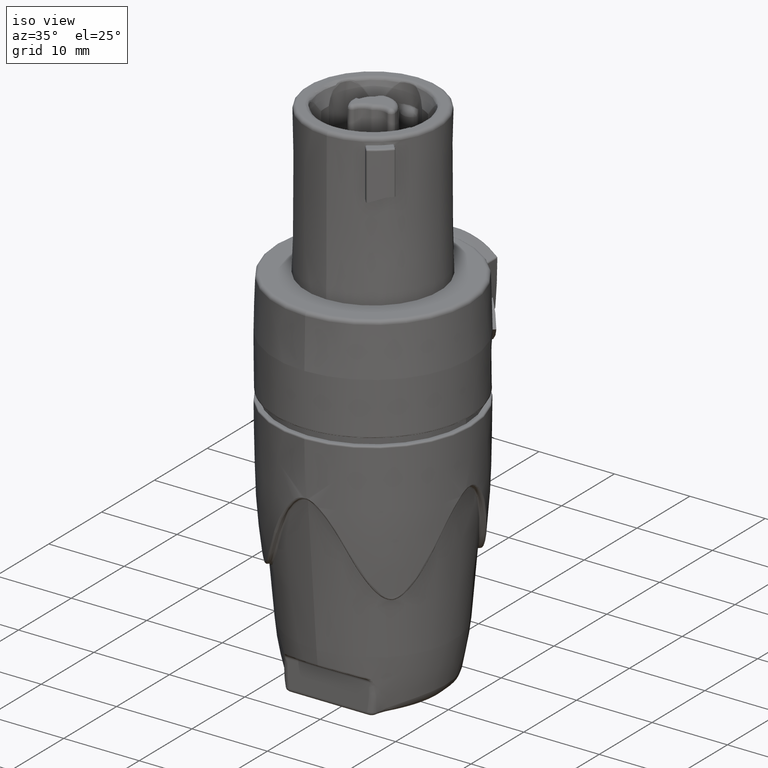
[diagram: clean part render]
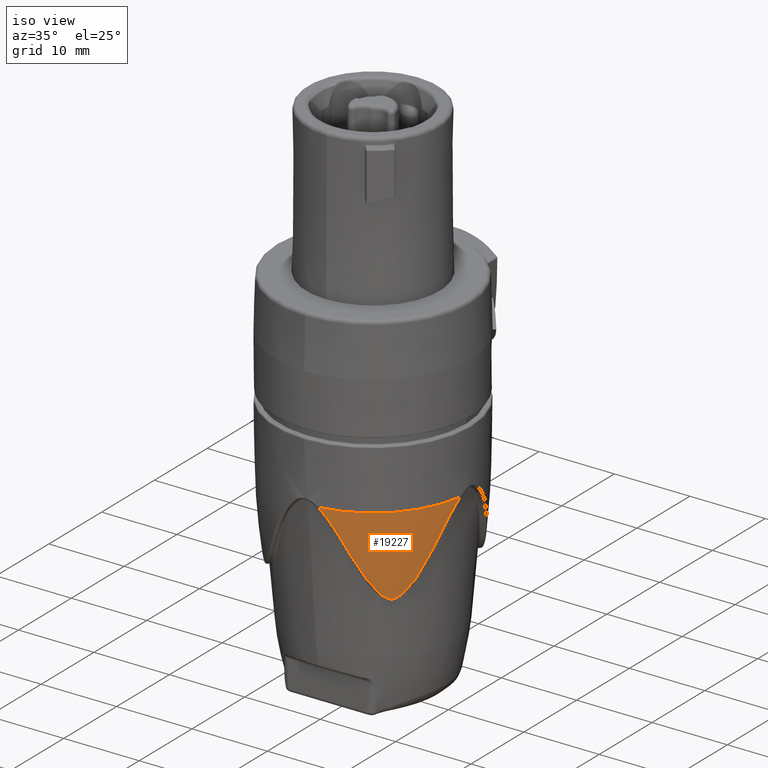
[diagram: same view with one face highlighted and labeled with its STEP entity id]
A machine part, iso view. The second image highlights one B-rep face of the part: STEP entity #19227.
In plain terms, the highlighted face is a freeform B-spline surface patch.
Its self-contained STEP definition (entity closure, byte-faithful):
#4081=CARTESIAN_POINT('',(1.275182245354E1,-1.667444729946E0,
-1.300000035537E1));
#4082=CARTESIAN_POINT('',(1.274464542078E1,-1.716713113895E0,
-1.304179391653E1));
#4083=CARTESIAN_POINT('',(1.273012707650E1,-1.811263618315E0,
-1.312505296189E1));
#4084=CARTESIAN_POINT('',(1.270918016913E1,-1.937447732278E0,
-1.324305575276E1));
#4085=CARTESIAN_POINT('',(1.268675204112E1,-2.062939299385E0,
-1.336749772431E1));
#4086=CARTESIAN_POINT('',(1.266454979160E1,-2.178812974237E0,
-1.348896922077E1));
#4087=CARTESIAN_POINT('',(1.264347896168E1,-2.282521863877E0,
-1.360270674056E1));
#4088=CARTESIAN_POINT('',(1.262297630284E1,-2.378403559832E0,
-1.371184958939E1));
#4089=CARTESIAN_POINT('',(1.260270651531E1,-2.468967197353E0,
-1.381809892347E1));
#4090=CARTESIAN_POINT('',(1.258045827443E1,-2.564236867821E0,
-1.393285219271E1));
#4091=CARTESIAN_POINT('',(1.255403115535E1,-2.672046373720E0,
-1.406651013077E1));
#4092=CARTESIAN_POINT('',(1.252730382788E1,-2.775744889935E0,
-1.419892531850E1));
#4093=CARTESIAN_POINT('',(1.250178448205E1,-2.870531669073E0,
-1.432318360453E1));
#4094=CARTESIAN_POINT('',(1.247658209718E1,-2.960487323011E0,
-1.444417577209E1));
#4095=CARTESIAN_POINT('',(1.245117008014E1,-3.047800810136E0,
-1.456487265246E1));
#4096=CARTESIAN_POINT('',(1.242424521227E1,-3.136920632618E0,
-1.469157788753E1));
#4097=CARTESIAN_POINT('',(1.239421937570E1,-3.232553887109E0,
-1.483155238933E1));
#4098=CARTESIAN_POINT('',(1.235958697480E1,-3.338296156494E0,
-1.499111019123E1));
#4099=CARTESIAN_POINT('',(1.232171398079E1,-3.448950950135E0,
-1.516294177816E1));
#4100=CARTESIAN_POINT('',(1.227947460665E1,-3.567028330815E0,
-1.535097678926E1));
#4101=CARTESIAN_POINT('',(1.223195197963E1,-3.693828894806E0,
-1.555796669691E1));
#4102=CARTESIAN_POINT('',(1.217920438519E1,-3.827861339917E0,
-1.578247582466E1));
#4103=CARTESIAN_POINT('',(1.212123604585E1,-3.967910582396E0,
-1.602371331881E1));
#4104=CARTESIAN_POINT('',(1.205641909571E1,-4.116421755879E0,
-1.628828735303E1));
#4105=CARTESIAN_POINT('',(1.198228334124E1,-4.276724854158E0,
-1.658582140152E1));
#4106=CARTESIAN_POINT('',(1.189812503856E1,-4.447828566195E0,
-1.691744636088E1));
#4107=CARTESIAN_POINT('',(1.180125758997E1,-4.632507584596E0,
-1.728970725536E1));
#4108=CARTESIAN_POINT('',(1.169195893852E1,-4.827367373340E0,
-1.769772223417E1));
#4109=CARTESIAN_POINT('',(1.160863835824E1,-4.965801912925E0,
-1.799930323755E1));
#4110=CARTESIAN_POINT('',(1.156431025204E1,-5.036618906537E0,
-1.815707264818E1));
#4112=CARTESIAN_POINT('',(1.156431025204E1,-5.036618906537E0,
-1.815707264818E1));
#4113=CARTESIAN_POINT('',(1.154126981337E1,-5.073427636941E0,
-1.823907606088E1));
#4114=CARTESIAN_POINT('',(1.149622061149E1,-5.144241035319E0,
-1.839670804310E1));
#4115=CARTESIAN_POINT('',(1.143189314456E1,-5.242461198070E0,
-1.861498748533E1));
#4116=CARTESIAN_POINT('',(1.137205058255E1,-5.331571628309E0,
-1.881267828006E1));
#4117=CARTESIAN_POINT('',(1.130605131064E1,-5.427495053965E0,
-1.902502104081E1));
#4118=CARTESIAN_POINT('',(1.123477241470E1,-5.528356322261E0,
-1.924755687423E1));
#4119=CARTESIAN_POINT('',(1.116209135812E1,-5.628528574257E0,
-1.946751472470E1));
#4120=CARTESIAN_POINT('',(1.109156223852E1,-5.723385896243E0,
-1.967419909969E1));
#4121=CARTESIAN_POINT('',(1.102292330823E1,-5.813879980793E0,
-1.986947751811E1));
#4122=CARTESIAN_POINT('',(1.093868239411E1,-5.922518583381E0,
-2.010080765017E1));
#4123=CARTESIAN_POINT('',(1.085255185025E1,-6.030903635924E0,
-2.032811718131E1));
#4124=CARTESIAN_POINT('',(1.076177260496E1,-6.142384194091E0,
-2.055928976290E1));
#4125=CARTESIAN_POINT('',(1.066882952535E1,-6.253585912731E0,
-2.078781992158E1));
#4126=CARTESIAN_POINT('',(1.057803811802E1,-6.359484395918E0,
-2.100352493591E1));
#4127=CARTESIAN_POINT('',(1.049747459716E1,-6.451403639330E0,
-2.118887591582E1));
#4128=CARTESIAN_POINT('',(1.042389297810E1,-6.533905711417E0,
-2.135312652193E1));
#4129=CARTESIAN_POINT('',(1.035595071014E1,-6.608982820351E0,
-2.150006497169E1));
#4130=CARTESIAN_POINT('',(1.029530179487E1,-6.675214092088E0,
-2.162729758855E1));
#4131=CARTESIAN_POINT('',(1.023826227131E1,-6.736888684119E0,
-2.174362949173E1));
#4132=CARTESIAN_POINT('',(1.018132935526E1,-6.797870469439E0,
-2.185660671125E1));
#4133=CARTESIAN_POINT('',(1.012072382017E1,-6.862139277285E0,
-2.197360766651E1));
#4134=CARTESIAN_POINT('',(1.005336095607E1,-6.932779111685E0,
-2.210016135510E1));
#4135=CARTESIAN_POINT('',(9.973648723886E0,-7.015242899144E0,
-2.224511535242E1));
#4136=CARTESIAN_POINT('',(9.894877190653E0,-7.095557108380E0,
-2.238312913934E1));
#4137=CARTESIAN_POINT('',(9.824257319828E0,-7.166713051305E0,
-2.250265123746E1));
#4138=CARTESIAN_POINT('',(9.754074157353E0,-7.236751374886E0,
-2.261741292661E1));
#4139=CARTESIAN_POINT('',(9.679651010326E0,-7.310399671408E0,
-2.273422934790E1));
#4140=CARTESIAN_POINT('',(9.597122962018E0,-7.391436570005E0,
-2.285767045965E1));
#4141=CARTESIAN_POINT('',(9.501478467088E0,-7.484662365315E0,
-2.299245799630E1));
#4142=CARTESIAN_POINT('',(9.387816530726E0,-7.594530572517E0,
-2.314119656490E1));
#4143=CARTESIAN_POINT('',(9.255477317401E0,-7.721237174732E0,
-2.329917018142E1));
#4144=CARTESIAN_POINT('',(9.107052367432E0,-7.862335811534E0,
-2.345480124867E1));
#4145=CARTESIAN_POINT('',(8.95796052E0,-8.003940924624E0,-2.358455665865E1));
#4146=CARTESIAN_POINT('',(8.819337335003E0,-8.136003262219E0,
-2.368013497117E1));
#4147=CARTESIAN_POINT('',(8.692398371516E0,-8.257908422410E0,
-2.374414926192E1));
#4148=CARTESIAN_POINT('',(8.576091808466E0,-8.371191309866E0,
-2.377937701951E1));
#4149=CARTESIAN_POINT('',(8.506912832867E0,-8.439765732276E0,
-2.378601855167E1));
#4150=CARTESIAN_POINT('',(8.473986525097E0,-8.472685035044E0,
-2.378607443715E1));
#4152=CARTESIAN_POINT('',(8.473986525097E0,-8.472685035044E0,
-2.378607443715E1));
#4153=CARTESIAN_POINT('',(8.443122668060E0,-8.503591018267E0,
-2.378589071338E1));
#4154=CARTESIAN_POINT('',(8.378135560353E0,-8.569163460723E0,
-2.377982299610E1));
#4155=CARTESIAN_POINT('',(8.272410492633E0,-8.677495091615E0,
-2.374927265109E1));
#4156=CARTESIAN_POINT('',(8.158816108985E0,-8.795460159874E0,
-2.369371858540E1));
#4157=CARTESIAN_POINT('',(8.038564254549E0,-8.921501752034E0,
-2.361171109097E1));
#4158=CARTESIAN_POINT('',(7.912312598689E0,-9.054405905445E0,
-2.350294334213E1));
#4159=CARTESIAN_POINT('',(7.781175640487E0,-9.192565093668E0,
-2.336748462656E1));
#4160=CARTESIAN_POINT('',(7.642109493517E0,-9.338402367071E0,
-2.320278754944E1));
#4161=CARTESIAN_POINT('',(7.492178952348E0,-9.493916026747E0,
-2.300485659413E1));
#4162=CARTESIAN_POINT('',(7.346433231158E0,-9.643137555848E0,
-2.279198989494E1));
#4163=CARTESIAN_POINT('',(7.224539269556E0,-9.766491937272E0,
-2.259861607789E1));
#4164=CARTESIAN_POINT('',(7.120360126325E0,-9.870485890241E0,
-2.242527240420E1));
#4165=CARTESIAN_POINT('',(7.028658857554E0,-9.960645469040E0,
-2.226800067511E1));
#4166=CARTESIAN_POINT('',(6.947998162155E0,-1.003879411911E1,
-2.212662108141E1));
#4167=CARTESIAN_POINT('',(6.877421997212E0,-1.010627399139E1,
-2.200072004013E1));
#4168=CARTESIAN_POINT('',(6.814712952575E0,-1.016554391305E1,
-2.188712335579E1));
#4169=CARTESIAN_POINT('',(6.756227938648E0,-1.022027240785E1,
-2.177952763366E1));
#4170=CARTESIAN_POINT('',(6.698416809440E0,-1.027388673588E1,
-2.167134383875E1));
#4171=CARTESIAN_POINT('',(6.638317331490E0,-1.032912244048E1,
-2.155686248034E1));
#4172=CARTESIAN_POINT('',(6.573130506589E0,-1.038844905658E1,
-2.143043051603E1));
#4173=CARTESIAN_POINT('',(6.500565063016E0,-1.045371281596E1,
-2.128718661803E1));
#4174=CARTESIAN_POINT('',(6.423280280174E0,-1.052222958366E1,
-2.113234985769E1));
#4175=CARTESIAN_POINT('',(6.340569080268E0,-1.059434329851E1,
-2.096491920412E1));
#4176=CARTESIAN_POINT('',(6.250061841887E0,-1.067174266737E1,
-2.078023589045E1));
#4177=CARTESIAN_POINT('',(6.152649823386E0,-1.075326154013E1,
-2.058005524580E1));
#4178=CARTESIAN_POINT('',(6.048272032005E0,-1.083857961928E1,
-2.036394658618E1));
#4179=CARTESIAN_POINT('',(5.937477209088E0,-1.092697622375E1,
-2.013227019914E1));
#4180=CARTESIAN_POINT('',(5.814769868150E0,-1.102241484740E1,
-1.987170775429E1));
#4181=CARTESIAN_POINT('',(5.683638604221E0,-1.112159398406E1,
-1.958822903386E1));
#4182=CARTESIAN_POINT('',(5.541045189572E0,-1.122604239126E1,
-1.927563944949E1));
#4183=CARTESIAN_POINT('',(5.386212605353E0,-1.133519305583E1,
-1.893372856901E1));
#4184=CARTESIAN_POINT('',(5.219012430882E0,-1.144807754534E1,
-1.856289110622E1));
#4185=CARTESIAN_POINT('',(5.097957769258E0,-1.152594300843E1,
-1.829360063523E1));
#4186=CARTESIAN_POINT('',(5.035113939796E0,-1.156526103835E1,
-1.815361497466E1));
#4188=CARTESIAN_POINT('',(5.035113939796E0,-1.156526103835E1,
-1.815361497466E1));
#4189=CARTESIAN_POINT('',(4.999773639190E0,-1.158737154071E1,
-1.807489440595E1));
#4190=CARTESIAN_POINT('',(4.931478570771E0,-1.162926745342E1,
-1.792447798594E1));
#4191=CARTESIAN_POINT('',(4.838081766459E0,-1.168463202779E1,
-1.772274990388E1));
#4192=CARTESIAN_POINT('',(4.750076702961E0,-1.173518529177E1,
-1.753601826815E1));
#4193=CARTESIAN_POINT('',(4.665402944195E0,-1.178237961788E1,
-1.735939282858E1));
#4194=CARTESIAN_POINT('',(4.581399162183E0,-1.182783911054E1,
-1.718708455027E1));
#4195=CARTESIAN_POINT('',(4.495998471106E0,-1.187269483332E1,
-1.701490808876E1));
#4196=CARTESIAN_POINT('',(4.407617520099E0,-1.191769338784E1,
-1.683997885333E1));
#4197=CARTESIAN_POINT('',(4.318885188019E0,-1.196140909907E1,
-1.666795150673E1));
#4198=CARTESIAN_POINT('',(4.233340545684E0,-1.200224197424E1,
-1.650559997652E1));
#4199=CARTESIAN_POINT('',(4.138612521364E0,-1.204603266242E1,
-1.632979337295E1));
#4200=CARTESIAN_POINT('',(4.028645679256E0,-1.209494290569E1,
-1.613116718636E1));
#4201=CARTESIAN_POINT('',(3.903861774149E0,-1.214811311896E1,
-1.591223762114E1));
#4202=CARTESIAN_POINT('',(3.754594700541E0,-1.220853748103E1,
-1.565832380680E1));
#4203=CARTESIAN_POINT('',(3.598860022831E0,-1.226794667288E1,
-1.540182816148E1));
#4204=CARTESIAN_POINT('',(3.454121781238E0,-1.232002164510E1,
-1.517077839098E1));
#4205=CARTESIAN_POINT('',(3.327411768559E0,-1.236328529640E1,
-1.497443519386E1));
#4206=CARTESIAN_POINT('',(3.209228970076E0,-1.240170748429E1,
-1.479705578729E1));
#4207=CARTESIAN_POINT('',(3.103852852786E0,-1.243439191779E1,
-1.464413318030E1));
#4208=CARTESIAN_POINT('',(3.006224447367E0,-1.246342407198E1,
-1.450682735122E1));
#4209=CARTESIAN_POINT('',(2.909316690877E0,-1.249108212188E1,
-1.437459239630E1));
#4210=CARTESIAN_POINT('',(2.806701918532E0,-1.251913535359E1,
-1.423866878780E1));
#4211=CARTESIAN_POINT('',(2.693339801208E0,-1.254873635596E1,
-1.409273791152E1));
#4212=CARTESIAN_POINT('',(2.562400121934E0,-1.258102531745E1,
-1.392989924681E1));
#4213=CARTESIAN_POINT('',(2.440280788730E0,-1.260932002598E1,
-1.378366419557E1));
#4214=CARTESIAN_POINT('',(2.327636224222E0,-1.263401670029E1,
-1.365342911056E1));
#4215=CARTESIAN_POINT('',(2.213914247999E0,-1.265757188868E1,
-1.352703772539E1));
#4216=CARTESIAN_POINT('',(2.101161172825E0,-1.267955451685E1,
-1.340729015604E1));
#4217=CARTESIAN_POINT('',(1.989274610537E0,-1.270005510314E1,
-1.329404153243E1));
#4218=CARTESIAN_POINT('',(1.878871823628E0,-1.271903316775E1,
-1.318777514083E1));
#4219=CARTESIAN_POINT('',(1.770113207955E0,-1.273651252964E1,
-1.308836380189E1));
#4220=CARTESIAN_POINT('',(1.701340298056E0,-1.274688887470E1,
-1.302854134395E1));
#4221=CARTESIAN_POINT('',(1.667744064299E0,-1.275178477275E1,
-1.300000038277E1));
#4223=CARTESIAN_POINT('',(0.E0,0.E0,-1.3E1));
#4224=DIRECTION('',(0.E0,0.E0,-1.E0));
#4225=DIRECTION('',(9.915588381678E-1,-1.296575121285E-1,0.E0));
#4226=AXIS2_PLACEMENT_3D('',#4223,#4224,#4225);
#11426=VERTEX_POINT('',#4081);
#11427=VERTEX_POINT('',#4110);
#11429=VERTEX_POINT('',#4150);
#11431=VERTEX_POINT('',#4186);
#11433=VERTEX_POINT('',#4221);
#19200=CARTESIAN_POINT('',(1.667431862892E0,1.275180445867E1,-1.3E1));
#19201=CARTESIAN_POINT('',(1.659258310401E0,1.268929663126E1,
-1.661155638554E1));
#19202=CARTESIAN_POINT('',(1.621293209906E0,1.239895580922E1,
-2.021177504829E1));
#19203=CARTESIAN_POINT('',(1.553690559638E0,1.188195970504E1,
-2.378605238383E1));
#19204=CARTESIAN_POINT('',(2.174806296703E1,1.012605182589E1,-1.3E1));
#19205=CARTESIAN_POINT('',(2.164145655139E1,1.007641512531E1,
-1.661155638554E1));
#19206=CARTESIAN_POINT('',(2.114628345646E1,9.845859032583E0,
-2.021177504829E1));
#19207=CARTESIAN_POINT('',(2.026455225804E1,9.435318754799E0,
-2.378605238383E1));
#19208=CARTESIAN_POINT('',(2.174830873093E1,-1.012552397375E1,-1.3E1));
#19209=CARTESIAN_POINT('',(2.164170111057E1,-1.007588986063E1,
-1.661155638554E1));
#19210=CARTESIAN_POINT('',(2.114652241995E1,-9.845345786368E0,
-2.021177504829E1));
#19211=CARTESIAN_POINT('',(2.026478125752E1,-9.434826909281E0,
-2.378605238383E1));
#19212=CARTESIAN_POINT('',(1.667741362574E0,-1.275176398453E1,-1.3E1));
#19213=CARTESIAN_POINT('',(1.659566292953E0,-1.268925635552E1,
-1.661155638554E1));
#19214=CARTESIAN_POINT('',(1.621594145581E0,-1.239891645502E1,
-2.021177504829E1));
#19215=CARTESIAN_POINT('',(1.553978947275E0,-1.188192199178E1,
-2.378605238383E1));
#19216=(BOUNDED_SURFACE()B_SPLINE_SURFACE(3,3,((#19200,#19201,#19202,#19203),(
#19204,#19205,#19206,#19207),(#19208,#19209,#19210,#19211),(#19212,#19213,
#19214,#19215)),.UNSPECIFIED.,.F.,.F.,.F.)B_SPLINE_SURFACE_WITH_KNOTS((4,4),(4,
4),(0.E0,1.E0),(0.E0,1.E0),.UNSPECIFIED.)GEOMETRIC_REPRESENTATION_ITEM()RATIONAL_B_SPLINE_SURFACE(((1.772227682935E0,1.769831447739E0,1.769831447739E0,
1.772227682935E0),(7.439442483525E-1,7.429383587545E-1,7.429383587545E-1,
7.439442483525E-1),(7.439442483525E-1,7.429383587545E-1,7.429383587545E-1,
7.439442483525E-1),(1.772227682935E0,1.769831447739E0,1.769831447739E0,
1.772227682935E0)))REPRESENTATION_ITEM('')SURFACE());
#19218=ORIENTED_EDGE('',*,*,#19217,.T.);
#19220=ORIENTED_EDGE('',*,*,#19219,.T.);
#19222=ORIENTED_EDGE('',*,*,#19221,.T.);
#19223=ORIENTED_EDGE('',*,*,#19128,.T.);
#19224=ORIENTED_EDGE('',*,*,#18617,.F.);
#19225=EDGE_LOOP('',(#19218,#19220,#19222,#19223,#19224));
#19226=FACE_OUTER_BOUND('',#19225,.F.);
#19227=ADVANCED_FACE('',(#19226),#19216,.T.);
#4111=B_SPLINE_CURVE_WITH_KNOTS('',3,(#4081,#4082,#4083,#4084,#4085,#4086,#4087,
#4088,#4089,#4090,#4091,#4092,#4093,#4094,#4095,#4096,#4097,#4098,#4099,#4100,
#4101,#4102,#4103,#4104,#4105,#4106,#4107,#4108,#4109,#4110),.UNSPECIFIED.,.F.,
.F.,(4,1,1,1,1,1,1,1,1,1,1,1,1,1,1,1,1,1,1,1,1,1,1,1,1,1,1,4),(0.E0,
3.703703703704E-2,7.407407407407E-2,1.111111111111E-1,1.481481481481E-1,
1.851851851852E-1,2.222222222222E-1,2.592592592593E-1,2.962962962963E-1,
3.333333333333E-1,3.703703703704E-1,4.074074074074E-1,4.444444444444E-1,
4.814814814815E-1,5.185185185185E-1,5.555555555556E-1,5.925925925926E-1,
6.296296296296E-1,6.666666666667E-1,7.037037037037E-1,7.407407407407E-1,
7.777777777778E-1,8.148148148148E-1,8.518518518519E-1,8.888888888889E-1,
9.259259259259E-1,9.629629629630E-1,1.E0),.UNSPECIFIED.);
#4151=B_SPLINE_CURVE_WITH_KNOTS('',3,(#4112,#4113,#4114,#4115,#4116,#4117,#4118,
#4119,#4120,#4121,#4122,#4123,#4124,#4125,#4126,#4127,#4128,#4129,#4130,#4131,
#4132,#4133,#4134,#4135,#4136,#4137,#4138,#4139,#4140,#4141,#4142,#4143,#4144,
#4145,#4146,#4147,#4148,#4149,#4150),.UNSPECIFIED.,.F.,.F.,(4,1,1,1,1,1,1,1,1,1,
1,1,1,1,1,1,1,1,1,1,1,1,1,1,1,1,1,1,1,1,1,1,1,1,1,1,4),(0.E0,2.777777777778E-2,
5.555555555556E-2,8.333333333333E-2,1.111111111111E-1,1.388888888889E-1,
1.666666666667E-1,1.944444444444E-1,2.222222222222E-1,2.5E-1,2.777777777778E-1,
3.055555555556E-1,3.333333333333E-1,3.611111111111E-1,3.888888888889E-1,
4.166666666667E-1,4.444444444444E-1,4.722222222222E-1,5.E-1,5.277777777778E-1,
5.555555555556E-1,5.833333333333E-1,6.111111111111E-1,6.388888888889E-1,
6.666666666667E-1,6.944444444444E-1,7.222222222222E-1,7.5E-1,7.777777777778E-1,
8.055555555556E-1,8.333333333333E-1,8.611111111111E-1,8.888888888889E-1,
9.166666666667E-1,9.444444444444E-1,9.722222222222E-1,1.E0),.UNSPECIFIED.);
#4187=B_SPLINE_CURVE_WITH_KNOTS('',3,(#4152,#4153,#4154,#4155,#4156,#4157,#4158,
#4159,#4160,#4161,#4162,#4163,#4164,#4165,#4166,#4167,#4168,#4169,#4170,#4171,
#4172,#4173,#4174,#4175,#4176,#4177,#4178,#4179,#4180,#4181,#4182,#4183,#4184,
#4185,#4186),.UNSPECIFIED.,.F.,.F.,(4,1,1,1,1,1,1,1,1,1,1,1,1,1,1,1,1,1,1,1,1,1,
1,1,1,1,1,1,1,1,1,1,4),(0.E0,3.125E-2,6.25E-2,9.375E-2,1.25E-1,1.5625E-1,
1.875E-1,2.1875E-1,2.5E-1,2.8125E-1,3.125E-1,3.4375E-1,3.75E-1,4.0625E-1,
4.375E-1,4.6875E-1,5.E-1,5.3125E-1,5.625E-1,5.9375E-1,6.25E-1,6.5625E-1,
6.875E-1,7.1875E-1,7.5E-1,7.8125E-1,8.125E-1,8.4375E-1,8.75E-1,9.0625E-1,
9.375E-1,9.6875E-1,1.E0),.UNSPECIFIED.);
#4222=B_SPLINE_CURVE_WITH_KNOTS('',3,(#4188,#4189,#4190,#4191,#4192,#4193,#4194,
#4195,#4196,#4197,#4198,#4199,#4200,#4201,#4202,#4203,#4204,#4205,#4206,#4207,
#4208,#4209,#4210,#4211,#4212,#4213,#4214,#4215,#4216,#4217,#4218,#4219,#4220,
#4221),.UNSPECIFIED.,.F.,.F.,(4,1,1,1,1,1,1,1,1,1,1,1,1,1,1,1,1,1,1,1,1,1,1,1,1,
1,1,1,1,1,1,4),(0.E0,3.225806451613E-2,6.451612903226E-2,9.677419354839E-2,
1.290322580645E-1,1.612903225806E-1,1.935483870968E-1,2.258064516129E-1,
2.580645161290E-1,2.903225806452E-1,3.225806451613E-1,3.548387096774E-1,
3.870967741935E-1,4.193548387097E-1,4.516129032258E-1,4.838709677419E-1,
5.161290322581E-1,5.483870967742E-1,5.806451612903E-1,6.129032258065E-1,
6.451612903226E-1,6.774193548387E-1,7.096774193548E-1,7.419354838710E-1,
7.741935483871E-1,8.064516129032E-1,8.387096774194E-1,8.709677419355E-1,
9.032258064516E-1,9.354838709677E-1,9.677419354839E-1,1.E0),.UNSPECIFIED.);
#4227=CIRCLE('',#4226,1.286035948057E1);
#18617=EDGE_CURVE('',#11426,#11433,#4227,.T.);
#19128=EDGE_CURVE('',#11431,#11433,#4222,.T.);
#19217=EDGE_CURVE('',#11426,#11427,#4111,.T.);
#19219=EDGE_CURVE('',#11427,#11429,#4151,.T.);
#19221=EDGE_CURVE('',#11429,#11431,#4187,.T.);